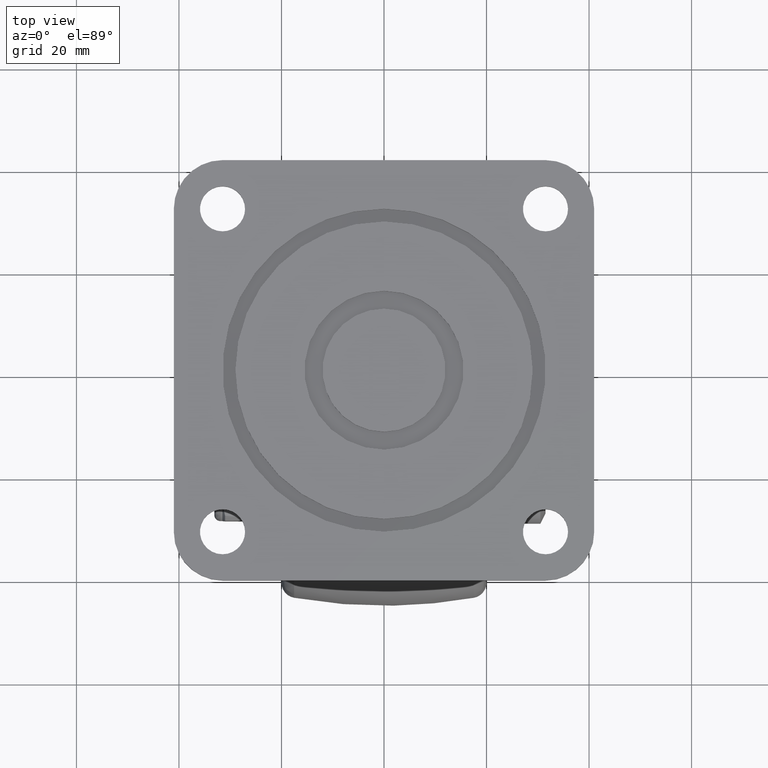
[diagram: clean part render]
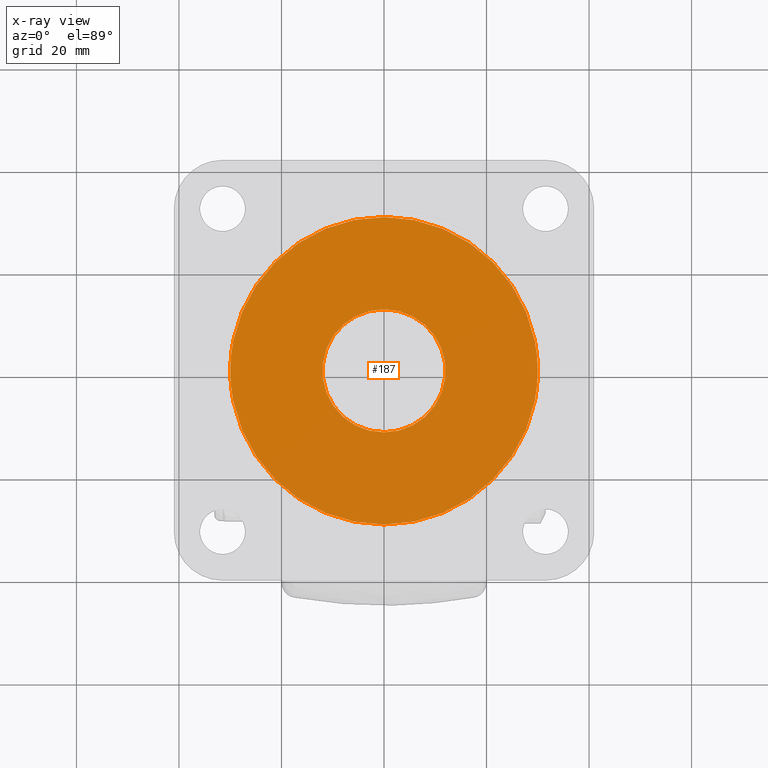
[diagram: x-ray — body ghosted, one internal face saturated and labeled with its STEP entity id]
A machine part, top view, then the same camera in x-ray: the body is ghosted and one INTERNAL B-rep face — a face not visible from any outside direction — is saturated and labeled: STEP entity #187.
In plain terms, the highlighted planar face has unit normal (0, 0, 1).
Its self-contained STEP definition (entity closure, byte-faithful):
#187=ADVANCED_FACE('',(#716,#717),#715,.T.);
#715=PLANE('',#2391);
#716=FACE_OUTER_BOUND('',#2392,.T.);
#717=FACE_BOUND('',#2393,.T.);
#2388=CARTESIAN_POINT('',(-6.19604464163E+01,-7.00212072802E+00,-3.89991910434E+01));
#2389=DIRECTION('',(-0.00000000000E+00,1.00000000000E+00,0.00000000000E+00));
#2390=DIRECTION('',(0.00000000000E+00,-0.00000000000E+00,1.00000000000E+00));
#2391=AXIS2_PLACEMENT_3D('',#2388,#2389,#2390);
#2392=EDGE_LOOP('',(#4094,#4095));
#2393=EDGE_LOOP('',(#4096,#4097));
#4094=ORIENTED_EDGE('',*,*,#4862,.F.);
#4095=ORIENTED_EDGE('',*,*,#4863,.F.);
#4096=ORIENTED_EDGE('',*,*,#4864,.T.);
#4097=ORIENTED_EDGE('',*,*,#4865,.T.);
#4862=EDGE_CURVE('',#6061,#6062,#6063,.T.);
#4863=EDGE_CURVE('',#6062,#6061,#6069,.T.);
#4864=EDGE_CURVE('',#6075,#6076,#6077,.T.);
#4865=EDGE_CURVE('',#6076,#6075,#6083,.T.);
#6061=VERTEX_POINT('',#8807);
#6062=VERTEX_POINT('',#8808);
#6063=CIRCLE('',#8812,2.99993777257E+01);
#6069=CIRCLE('',#8816,2.99993777257E+01);
#6075=VERTEX_POINT('',#8817);
#6076=VERTEX_POINT('',#8818);
#6077=CIRCLE('',#8822,1.20000000000E+01);
#6083=CIRCLE('',#8826,1.20000000000E+01);
#8807=CARTESIAN_POINT('',(3.55271367880E-15,-7.00212072802E+00,2.99993777257E+01));
#8808=CARTESIAN_POINT('',(0.00000000000E+00,-7.00212072802E+00,-2.99993777257E+01));
#8809=CARTESIAN_POINT('',(0.00000000000E+00,-7.00212072802E+00,0.00000000000E+00));
#8810=DIRECTION('',(0.00000000000E+00,-1.00000000000E+00,-0.00000000000E+00));
#8811=DIRECTION('',(-1.22460635382E-16,0.00000000000E+00,-1.00000000000E+00));
#8812=AXIS2_PLACEMENT_3D('',#8809,#8810,#8811);
#8813=CARTESIAN_POINT('',(0.00000000000E+00,-7.00212072802E+00,0.00000000000E+00));
#8814=DIRECTION('',(0.00000000000E+00,-1.00000000000E+00,-0.00000000000E+00));
#8815=DIRECTION('',(-1.22460635382E-16,0.00000000000E+00,-1.00000000000E+00));
#8816=AXIS2_PLACEMENT_3D('',#8813,#8814,#8815);
#8817=CARTESIAN_POINT('',(0.00000000000E+00,-7.00212072802E+00,1.20000000000E+01));
#8818=CARTESIAN_POINT('',(2.36847578587E-15,-7.00212072802E+00,-1.20000000000E+01));
#8819=CARTESIAN_POINT('',(0.00000000000E+00,-7.00212072802E+00,0.00000000000E+00));
#8820=DIRECTION('',(0.00000000000E+00,-1.00000000000E+00,0.00000000000E+00));
#8821=DIRECTION('',(-1.22460635382E-16,-0.00000000000E+00,1.00000000000E+00));
#8822=AXIS2_PLACEMENT_3D('',#8819,#8820,#8821);
#8823=CARTESIAN_POINT('',(0.00000000000E+00,-7.00212072802E+00,0.00000000000E+00));
#8824=DIRECTION('',(0.00000000000E+00,-1.00000000000E+00,0.00000000000E+00));
#8825=DIRECTION('',(-1.22460635382E-16,-0.00000000000E+00,1.00000000000E+00));
#8826=AXIS2_PLACEMENT_3D('',#8823,#8824,#8825);